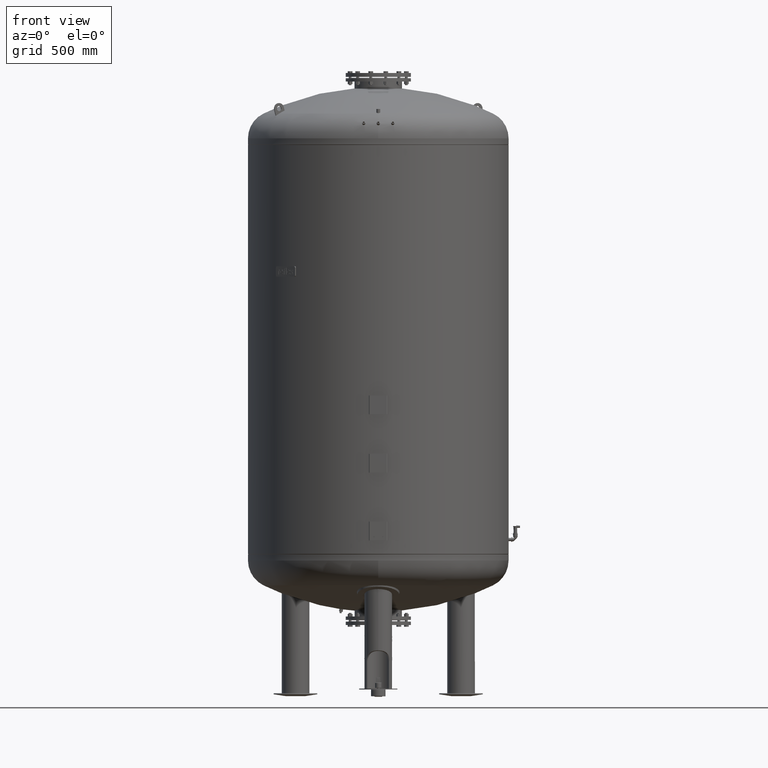
[diagram: clean part render]
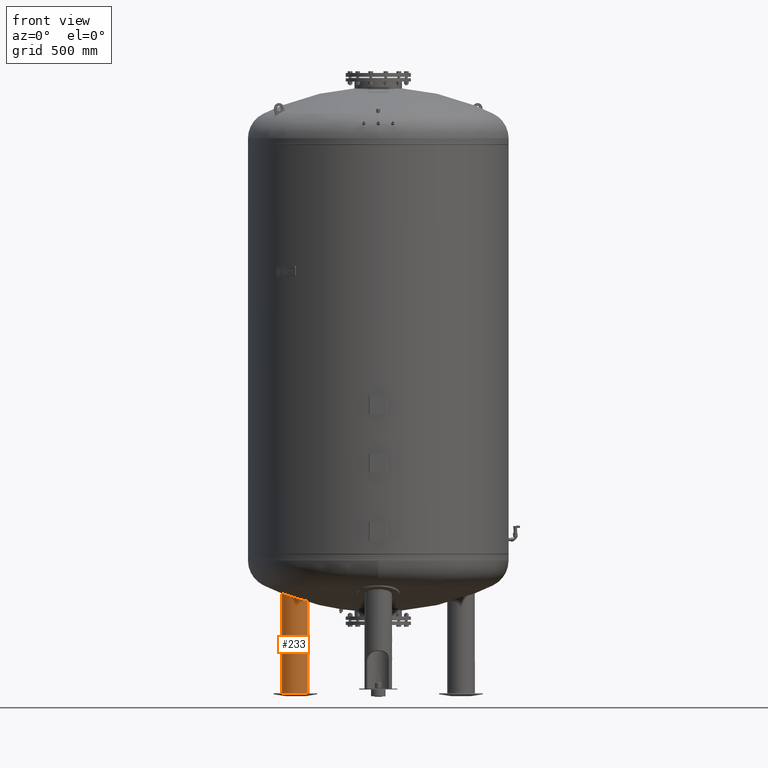
[diagram: same view with one face highlighted and labeled with its STEP entity id]
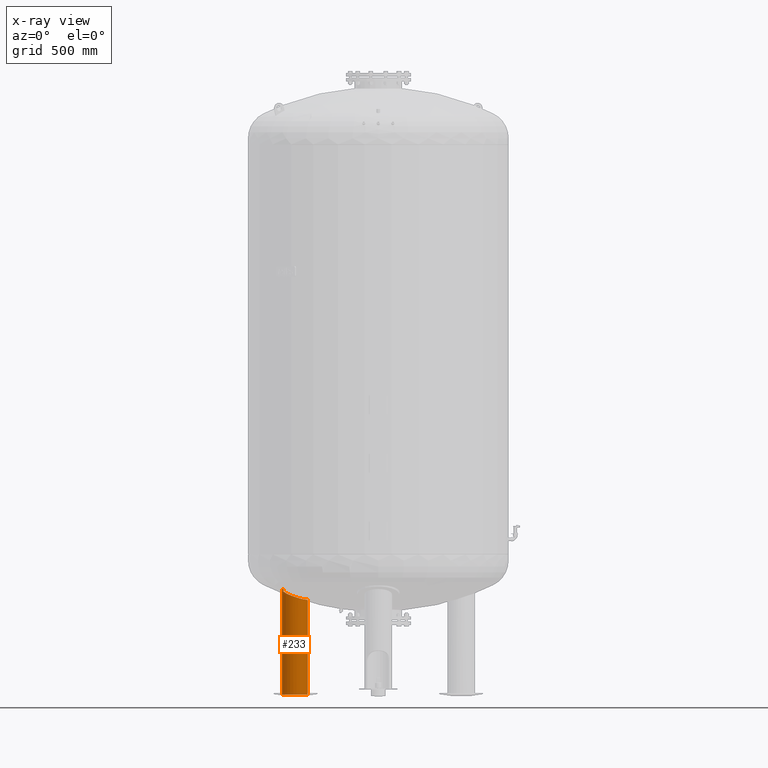
[diagram: x-ray of the same camera — body ghosted, the highlighted face saturated]
A machine part, front view. The second image highlights one B-rep face of the part: STEP entity #233.
The next image is the same camera in x-ray: the body ghosted, the highlighted face saturated — about 0% of this face is hidden behind the body in this view.
In plain terms, the highlighted cylindrical surface (edge-blend (fillet) strip) has radius 79.5 mm, axis along (-0, -0, -1).
Its self-contained STEP definition (entity closure, byte-faithful):
#167=CARTESIAN_POINT('',(-476.313972081441140,275.000000000000060,15.815585141290533));
#168=DIRECTION('',(-9.184851E-017,-1.590863E-016,-1.0));
#169=DIRECTION('',(-0.866025403784439,0.500000000000000,0.0));
#170=AXIS2_PLACEMENT_3D('',#167,#168,#169);
#171=CYLINDRICAL_SURFACE('',#170,79.500000000000000);
#172=CARTESIAN_POINT('',(-545.162991682303980,314.750000000000060,11.631170282581067));
#173=VERTEX_POINT('',#172);
#174=CARTESIAN_POINT('',(-545.162991682304550,314.750000000000450,619.974328976416250));
#175=VERTEX_POINT('',#174);
#176=CARTESIAN_POINT('',(-545.162991682303980,314.750000000000060,11.631170282581067));
#177=DIRECTION('',(0.0,0.0,1.0));
#178=VECTOR('',#177,608.343158693835220);
#179=LINE('',#176,#178);
#180=EDGE_CURVE('',#173,#175,#179,.T.);
#181=ORIENTED_EDGE('',*,*,#180,.F.);
#182=CARTESIAN_POINT('',(-407.464952480578290,235.250000000000060,11.631170282581067));
#183=VERTEX_POINT('',#182);
#184=CARTESIAN_POINT('',(-476.313972081441140,275.000000000000060,11.631170282581067));
#185=DIRECTION('',(0.0,0.0,-1.0));
#186=DIRECTION('',(-0.866025403784439,0.500000000000000,0.0));
#187=AXIS2_PLACEMENT_3D('',#184,#185,#186);
#188=CIRCLE('',#187,79.500000000000000);
#189=EDGE_CURVE('',#183,#173,#188,.T.);
#190=ORIENTED_EDGE('',*,*,#189,.F.);
#191=CARTESIAN_POINT('',(-407.464952480578230,235.250000000000140,557.801446445446800));
#192=VERTEX_POINT('',#191);
#193=CARTESIAN_POINT('',(-407.464952480578290,235.250000000000060,11.631170282581067));
#194=DIRECTION('',(0.0,0.0,1.0));
#195=VECTOR('',#194,546.170276162865780);
#196=LINE('',#193,#195);
#197=EDGE_CURVE('',#183,#192,#196,.T.);
#198=ORIENTED_EDGE('',*,*,#197,.T.);
#199=CARTESIAN_POINT('',(-515.420540091885980,205.783482184926270,588.259208461118420));
#200=VERTEX_POINT('',#199);
#201=CARTESIAN_POINT('',(-407.464952480578230,235.250000000000140,557.801446445446800));
#202=CARTESIAN_POINT('',(-411.525284235391100,228.217299105078920,557.801446445446800));
#203=CARTESIAN_POINT('',(-416.633408486805080,221.858280027431760,558.277369662588170));
#204=CARTESIAN_POINT('',(-429.761674803730950,209.827814395284460,560.328261777430270));
#205=CARTESIAN_POINT('',(-437.984686074917310,204.702974823101580,562.075596332598020));
#206=CARTESIAN_POINT('',(-456.175474625067690,197.436185727422980,566.734659420112730));
#207=CARTESIAN_POINT('',(-466.033210859583900,195.556981402014120,569.661195647944850));
#208=CARTESIAN_POINT('',(-486.479592551512610,195.441118239628740,576.486089468713540));
#209=CARTESIAN_POINT('',(-496.909310680895430,197.506578863575210,580.391859104990320));
#210=CARTESIAN_POINT('',(-509.612134853003400,202.734511174030440,585.699021239809100));
#211=CARTESIAN_POINT('',(-512.567447715403090,204.171516507035560,586.978453284904390));
#212=CARTESIAN_POINT('',(-515.420540091885980,205.783482184926270,588.259208461118420));
#213=B_SPLINE_CURVE_WITH_KNOTS('',3,(#201,#202,#203,#204,#205,#206,#207,#208,#209,#210,#211,#212),.UNSPECIFIED.,.F.,.U.,(4,2,2,2,2,4),(25.946274642103891,28.391196783303212,31.323094720106891,34.426409319311013,37.777807879739491,38.832927063684011),.UNSPECIFIED.);
#214=EDGE_CURVE('',#192,#200,#213,.T.);
#215=ORIENTED_EDGE('',*,*,#214,.T.);
#216=CARTESIAN_POINT('',(-515.420540091885980,205.783482184926270,588.259208461118420));
#217=CARTESIAN_POINT('',(-522.189871946945350,209.608079910030260,591.297966296069940));
#218=CARTESIAN_POINT('',(-528.383718873332780,214.417560257502800,594.344322088061060));
#219=CARTESIAN_POINT('',(-541.284952864477080,227.918131708280870,601.394273940897850));
#220=CARTESIAN_POINT('',(-547.177725508011460,237.298610240627000,605.264897102246320));
#221=CARTESIAN_POINT('',(-554.498555675811300,257.327220450158220,611.749699955350710));
#222=CARTESIAN_POINT('',(-556.170213519301800,267.666267272131960,614.383971692484580));
#223=CARTESIAN_POINT('',(-555.498438054978580,284.487964787748180,617.505471067215810));
#224=CARTESIAN_POINT('',(-554.492404166263550,290.789603093066490,618.415766111970470));
#225=CARTESIAN_POINT('',(-550.944328273743390,303.147603069283660,619.656658887407730));
#226=CARTESIAN_POINT('',(-548.407602199616920,309.130169733241190,619.974328976416020));
#227=CARTESIAN_POINT('',(-545.162991682303750,314.750000000000000,619.974328976416020));
#228=B_SPLINE_CURVE_WITH_KNOTS('',3,(#216,#217,#218,#219,#220,#221,#222,#223,#224,#225,#226,#227),.UNSPECIFIED.,.F.,.U.,(4,2,2,2,2,4),(38.832927063684011,41.336334230459492,44.806614551580793,48.013896662752792,49.941938919734973,51.888705230122902),.UNSPECIFIED.);
#229=EDGE_CURVE('',#200,#175,#228,.T.);
#230=ORIENTED_EDGE('',*,*,#229,.T.);
#231=EDGE_LOOP('',(#181,#190,#198,#215,#230));
#232=FACE_OUTER_BOUND('',#231,.T.);
#233=ADVANCED_FACE('',(#232),#171,.T.);